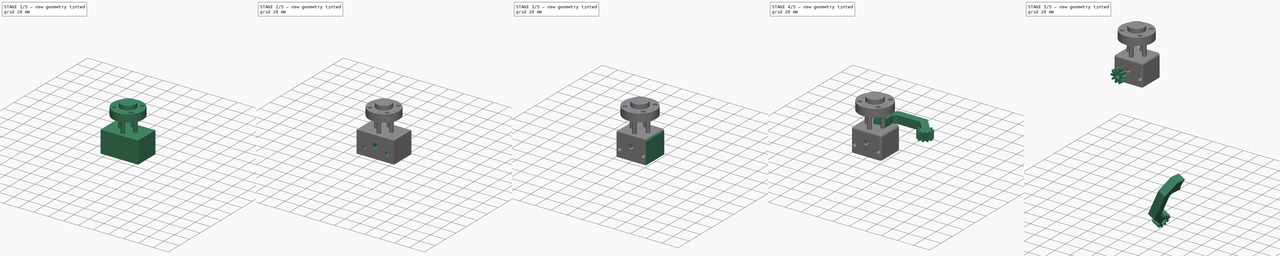
[diagram: build sequence overview — one tinted view per stage of 5, left to right]
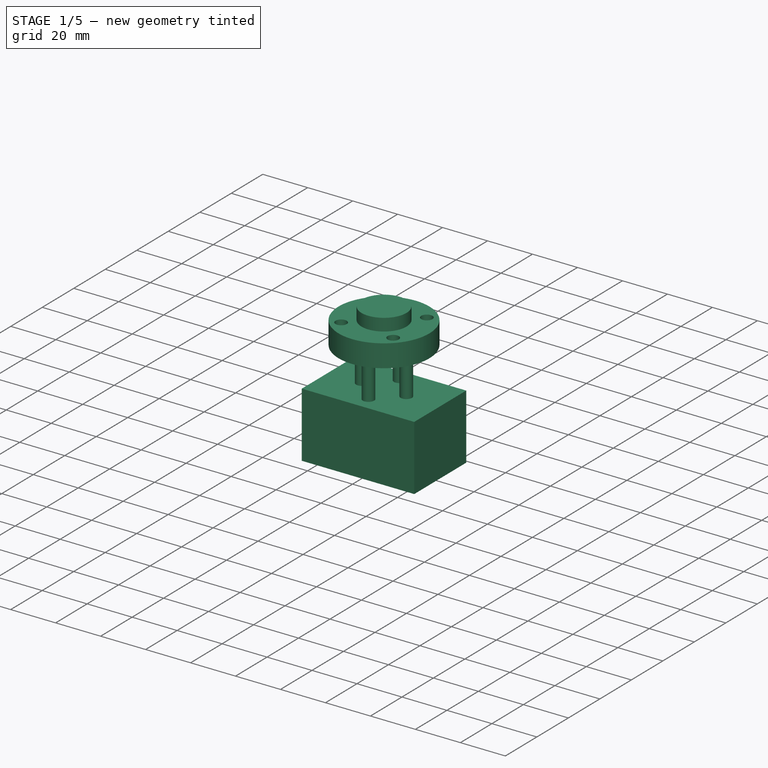
[diagram: stage 1 of 5 — iso view after this stage's code; geometry added in this stage tinted green]
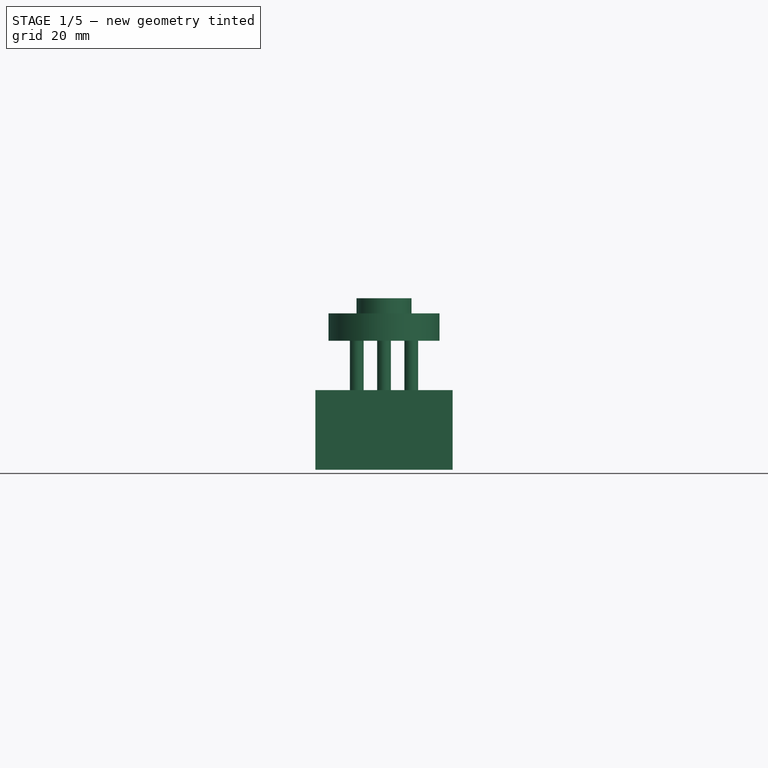
[diagram: stage 1 of 5 — front view after this stage's code; geometry added in this stage tinted green]
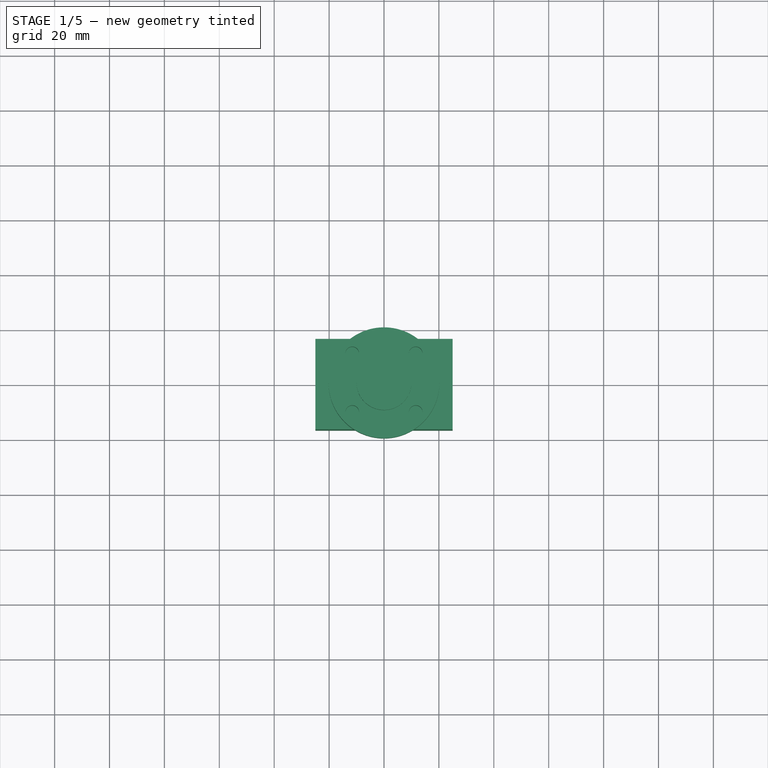
[diagram: stage 1 of 5 — top view after this stage's code; geometry added in this stage tinted green]
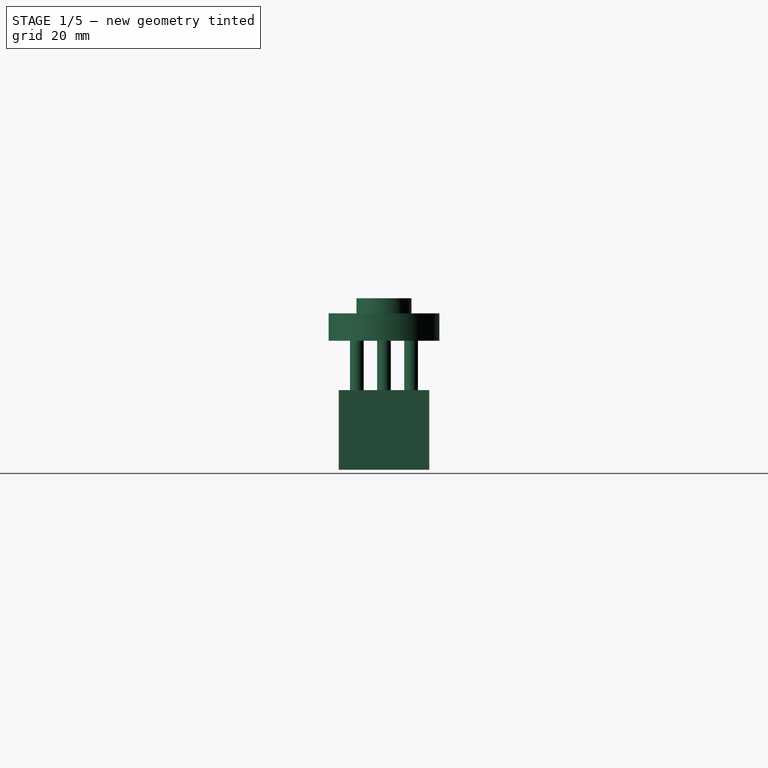
[diagram: stage 1 of 5 — right view after this stage's code; geometry added in this stage tinted green]
FCSTD DOCUMENT  (FreeCAD 0.16R6712 (Git))
Label: pinza basica
License: All rights reserved
LicenseURL: http://en.wikipedia.org/wiki/All_rights_reserved
objects: Sketcher::SketchObject×10, PartDesign::Pocket×6, PartDesign::Pad×5, App::DocumentObjectGroup×4, Part::Box×3, PartDesign::Fillet×3, Part::Part2DObjectPython×2, Part::Cut×2, Part::MultiFuse×1, Part::Cylinder×1, Part::Mirroring×1, Part::Fuse×1
note: 46 computed .brp shape members not serialized (recipe doc carries the construction recipe); baked Part::Feature solids carry a one-line shape summary decoded from their .brp

FEATURE [Part::Cylinder] Cylinder  label="Cilindro"
  Angle = 360
  Height = 10
  Placement = pos=(0,0,14) rot=(0,0,1;0rad)
  Radius = 20.2
FEATURE [Part::Box] Box  label="Cubo"
  Height = 29
  Length = 50
  Placement = pos=(-25,-16.5,-33) rot=(0,0,1;0rad)
  Width = 33
FEATURE [App::DocumentObjectGroup] Grupo  label="Agarre"
  Group = -> [Fusion,Pocket,mirror]
FEATURE [Sketcher::SketchObject] Sketch012
  Placement = pos=(0,0,24) rot=(0,0,1;0rad)
  Support = -> Cylinder [Face2]
  sketch-geometry (5):
    g0: Circle [constr] CenterX=0 CenterY=0 CenterZ=0 NormalX=0 NormalY=0 NormalZ=1 Radius=15.75
    g1: Circle CenterX=-11.5693 CenterY=10.687 CenterZ=0 NormalX=0 NormalY=0 NormalZ=1 Radius=2.5
    g2: Circle CenterX=11.5693 CenterY=10.687 CenterZ=0 NormalX=0 NormalY=0 NormalZ=1 Radius=2.5
    g3: Circle CenterX=11.5693 CenterY=-10.687 CenterZ=0 NormalX=0 NormalY=0 NormalZ=1 Radius=2.5
    g4: Circle CenterX=-11.5693 CenterY=-10.687 CenterZ=0 NormalX=0 NormalY=0 NormalZ=1 Radius=2.5
  constraints (11):
    c: Coincident(g0,g-1)
    c: Radius(g0) = 15.75
    c: PointOnObject(g1,g0)
    c: PointOnObject(g3,g0)
    c: Symmetric(g1,g4,g-1)
    c: Symmetric(g1,g2,g-2)
    c: Symmetric(g2,g3,g-1)
    c: Radius(g1) = 2.5
    c: Equal(g1,g4)
    c: Equal(g4,g3)
    c: Equal(g3,g2)
FEATURE [PartDesign::Pocket] Pocket004  label="taladros cil"
  Length = 18
  Placement = pos=(0,0,14) rot=(0,0,1;0rad)
  Sketch = -> Sketch012
  Type = 0
FEATURE [Sketcher::SketchObject] Sketch013
  Placement = pos=(0,0,24) rot=(0,0,1;0rad)
  Support = -> Pocket004 [Face2]
  sketch-geometry (1):
    g0: Circle CenterX=0 CenterY=0 CenterZ=0 NormalX=0 NormalY=0 NormalZ=1 Radius=10
  constraints (2):
    c: Coincident(g0,g-1)
    c: Radius(g0) = 10
FEATURE [PartDesign::Pad] Pad003  label="est cilin"
  Length = 5.5
  Length2 = 100
  Placement = pos=(0,0,14) rot=(0,0,1;0rad)
  Sketch = -> Sketch013
  Type = 0
FEATURE [Sketcher::SketchObject] Sketch014
  Placement = pos=(0,0,14) rot=(1,0,0;3.14159rad)
  Support = -> Pad003 [Face3]
  sketch-geometry (4):
    g0: Circle CenterX=-9.91664 CenterY=0 CenterZ=0 NormalX=0 NormalY=0 NormalZ=1 Radius=2.5
    g1: Circle CenterX=9.91664 CenterY=0 CenterZ=0 NormalX=0 NormalY=0 NormalZ=1 Radius=2.5
    g2: Circle CenterX=0 CenterY=9.87696 CenterZ=0 NormalX=0 NormalY=0 NormalZ=1 Radius=2.5
    g3: Circle CenterX=0 CenterY=-9.87696 CenterZ=0 NormalX=0 NormalY=0 NormalZ=1 Radius=2.5
  constraints (10):
    c: PointOnObject(g0,g-1)
    c: PointOnObject(g1,g-1)
    c: PointOnObject(g2,g-2)
    c: PointOnObject(g3,g-2)
    c: Radius(g0) = 2.5
    c: Equal(g0,g2)
    c: Equal(g2,g1)
    c: Equal(g1,g3)
    c: Symmetric(g2,g3,g-1)
    c: Symmetric(g1,g0,g-2)
FEATURE [PartDesign::Pad] Pad004
  Length = 20
  Length2 = 100
  Placement = pos=(0,0,14) rot=(0,0,1;0rad)
  Sketch = -> Sketch014
  Type = 0
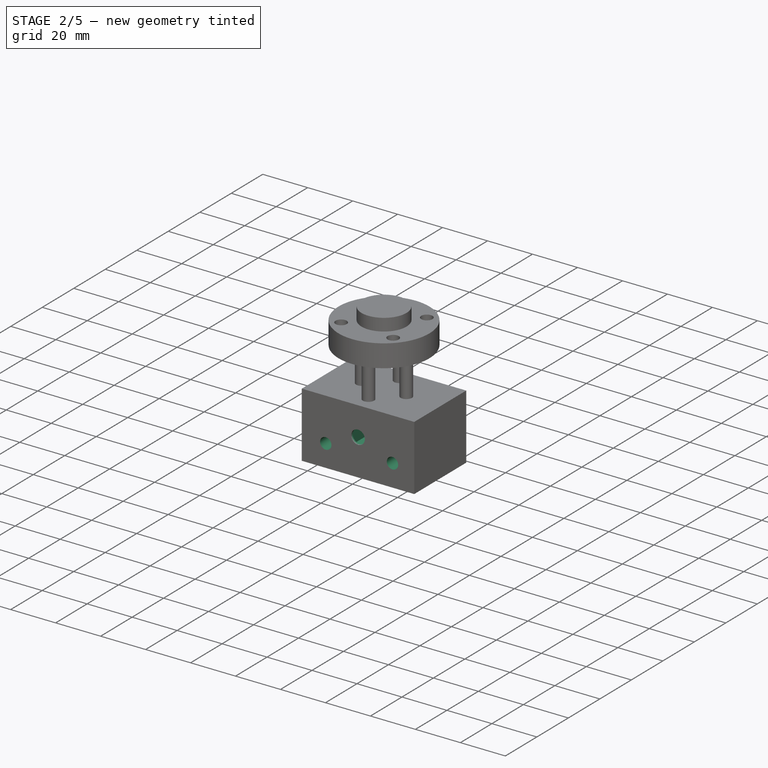
[diagram: stage 2 of 5 — iso view after this stage's code; geometry added in this stage tinted green]
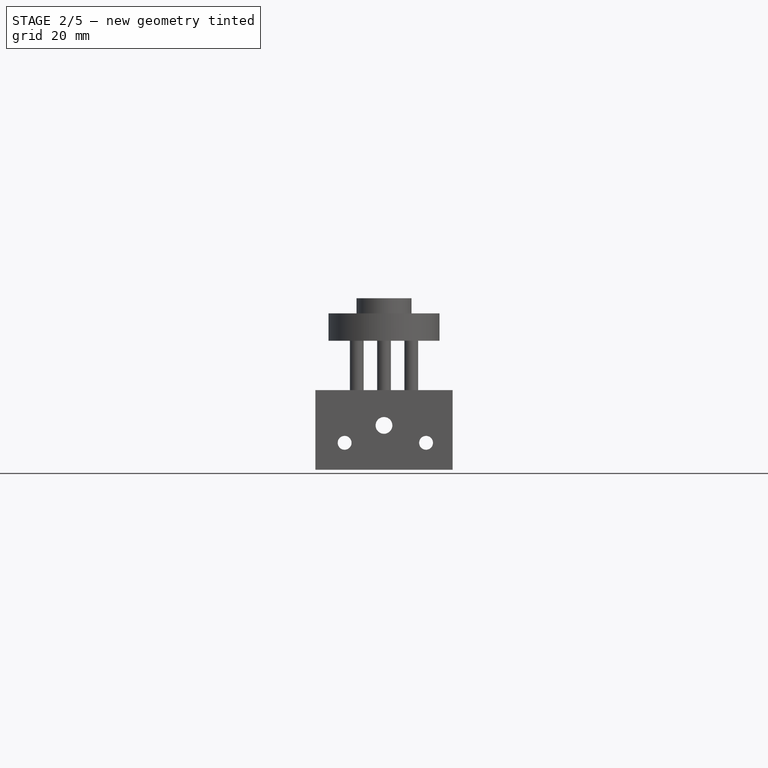
[diagram: stage 2 of 5 — front view after this stage's code; geometry added in this stage tinted green]
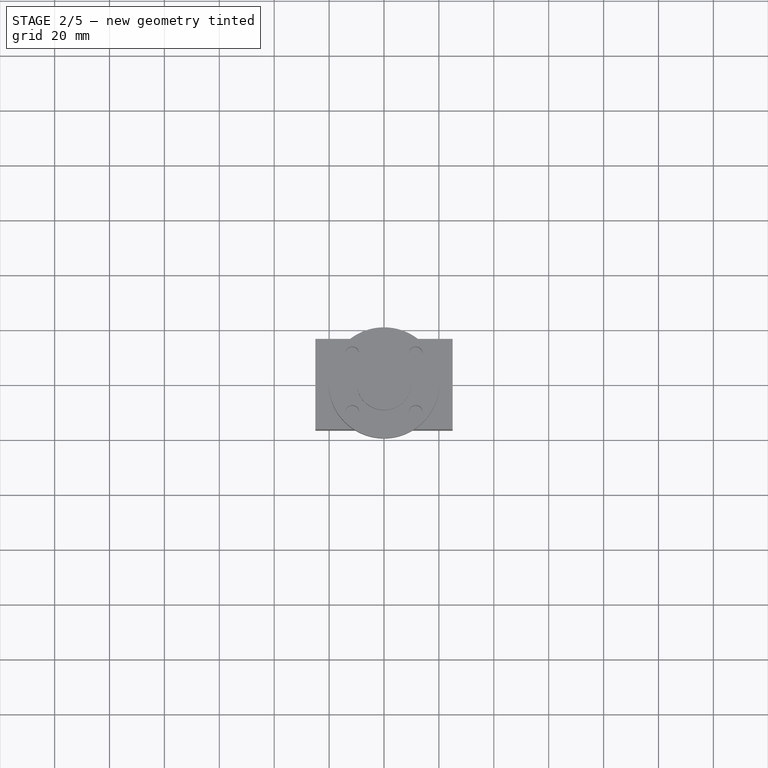
[diagram: stage 2 of 5 — top view after this stage's code; geometry added in this stage tinted green]
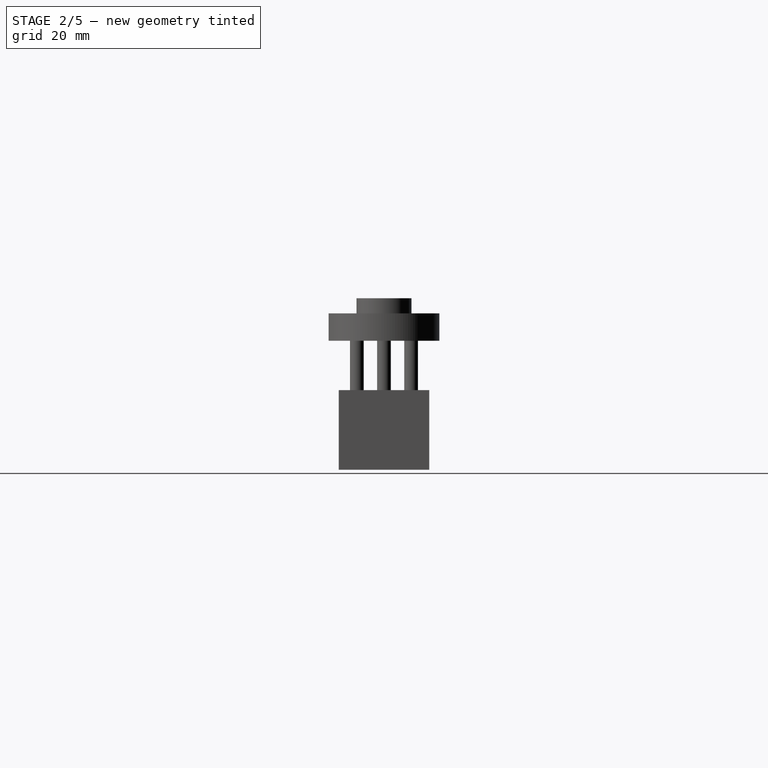
[diagram: stage 2 of 5 — right view after this stage's code; geometry added in this stage tinted green]
FEATURE [Sketcher::SketchObject] Sketch015
  Placement = pos=(0,0,14) rot=(1,0,0;3.14159rad)
  Support = -> Pad003 [Face3]
  sketch-geometry (5):
    g0: Circle [constr] CenterX=0 CenterY=0 CenterZ=0 NormalX=0 NormalY=0 NormalZ=1 Radius=15.75
    g1: Circle CenterX=-15.7486 CenterY=-0.211937 CenterZ=0 NormalX=0 NormalY=0 NormalZ=1 Radius=2.73822
    g2: Circle CenterX=-0.054706 CenterY=-15.7499 CenterZ=0 NormalX=0 NormalY=0 NormalZ=1 Radius=2.69912
    g3: Circle CenterX=0.0437532 CenterY=15.7499 CenterZ=0 NormalX=0 NormalY=0 NormalZ=1 Radius=2.75406
    g4: Circle CenterX=15.718 CenterY=1.00422 CenterZ=0 NormalX=0 NormalY=0 NormalZ=1 Radius=3.16538
  constraints (6):
    c: Coincident(g0,g-1)
    c: Radius(g0) = 15.75
    c: PointOnObject(g1,g0)
    c: PointOnObject(g2,g0)
    c: PointOnObject(g3,g0)
    c: PointOnObject(g4,g0)
FEATURE [Sketcher::SketchObject] Sketch016
  Placement = pos=(-25,16.5,-33) rot=(0,0.707107,0.707107;3.14159rad)
  Support = -> Box [Face4]
  sketch-geometry (4):
    g0: LineSegment StartX=-35.1769 StartY=26.7382 StartZ=0 EndX=-14.7627 EndY=26.7382 EndZ=0
    g1: LineSegment StartX=-14.7627 StartY=26.7382 StartZ=0 EndX=-14.7627 EndY=6.32665 EndZ=0
    g2: LineSegment StartX=-14.7627 StartY=6.32665 StartZ=0 EndX=-35.1769 EndY=6.32665 EndZ=0
    g3: LineSegment StartX=-35.1769 StartY=6.32665 StartZ=0 EndX=-35.1769 EndY=26.7382 EndZ=0
  constraints (8):
    c: Coincident(g0,g1)
    c: Coincident(g1,g2)
    c: Coincident(g2,g3)
    c: Coincident(g3,g0)
    c: Horizontal(g0)
    c: Horizontal(g2)
    c: Vertical(g1)
    c: Vertical(g3)
FEATURE [PartDesign::Pocket] Pocket005
  Length = 32
  Placement = pos=(-25,-16.5,-33) rot=(0,0,1;0rad)
  Sketch = -> Sketch016
  Type = 0
FEATURE [Sketcher::SketchObject] Sketch017
  Placement = pos=(-25,-15.5,-33) rot=(0,0.707107,0.707107;3.14159rad)
  Support = -> Pocket005 [Face11]
  sketch-geometry (1):
    g0: Circle CenterX=-24.9914 CenterY=16.1661 CenterZ=0 NormalX=0 NormalY=0 NormalZ=1 Radius=3.04752
FEATURE [PartDesign::Pocket] Pocket006
  Length = 5
  Placement = pos=(-25,-16.5,-33) rot=(0,0,1;0rad)
  Sketch = -> Sketch017
  Type = 0
FEATURE [Sketcher::SketchObject] Sketch018
  Placement = pos=(-25,-16.5,-33) rot=(1,0,0;1.5708rad)
  Support = -> Pocket006 [Face2]
  sketch-geometry (4):
    g0: Circle CenterX=10.6549 CenterY=9.82566 CenterZ=0 NormalX=0 NormalY=0 NormalZ=1 Radius=2.52
    g1: Circle CenterX=40.3221 CenterY=9.82566 CenterZ=0 NormalX=0 NormalY=0 NormalZ=1 Radius=2.52
    g2: LineSegment [constr] StartX=0 StartY=0 StartZ=0 EndX=50 EndY=0 EndZ=0
    g3: LineSegment [constr] StartX=25.4885 StartY=0.00469248 StartZ=0 EndX=25.4885 EndY=13.9111 EndZ=0
  constraints (7):
    c: Radius(g0) = 2.52
    c: Equal(g0,g1)
    c: Coincident(g2,g-1)
    c: Horizontal(g2)
    c: DistanceX(g2,g2) = 50
    c: Vertical(g3)
    c: Symmetric(g0,g1,g3)
FEATURE [PartDesign::Pocket] Pocket007
  Length = 38
  Placement = pos=(-25,-16.5,-33) rot=(0,0,1;0rad)
  Sketch = -> Sketch018
  Type = 0
FEATURE [Part::Fuse] Fusion001
  Base = -> Pad004
  Tool = -> Pocket007
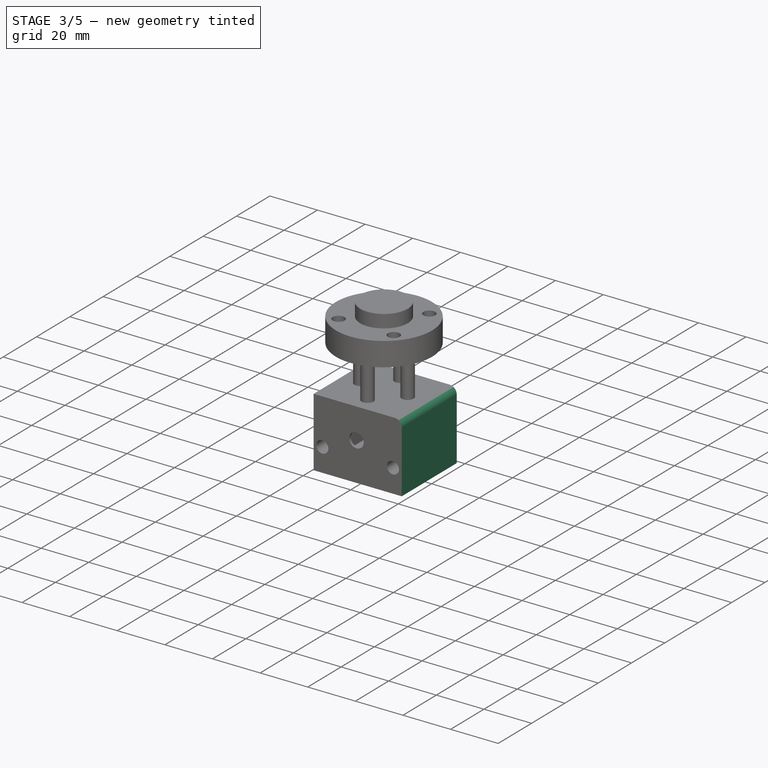
[diagram: stage 3 of 5 — iso view after this stage's code; geometry added in this stage tinted green]
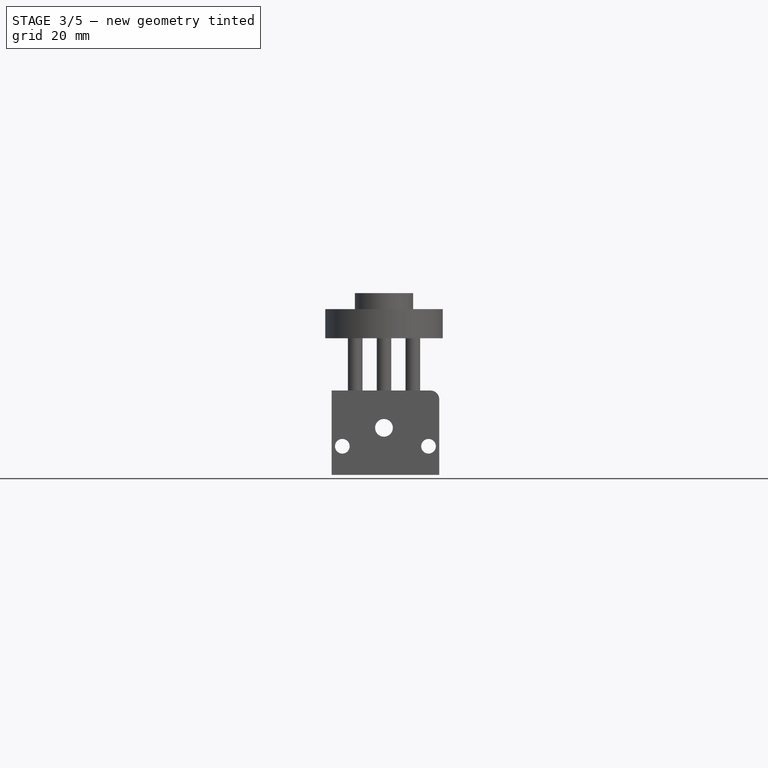
[diagram: stage 3 of 5 — front view after this stage's code; geometry added in this stage tinted green]
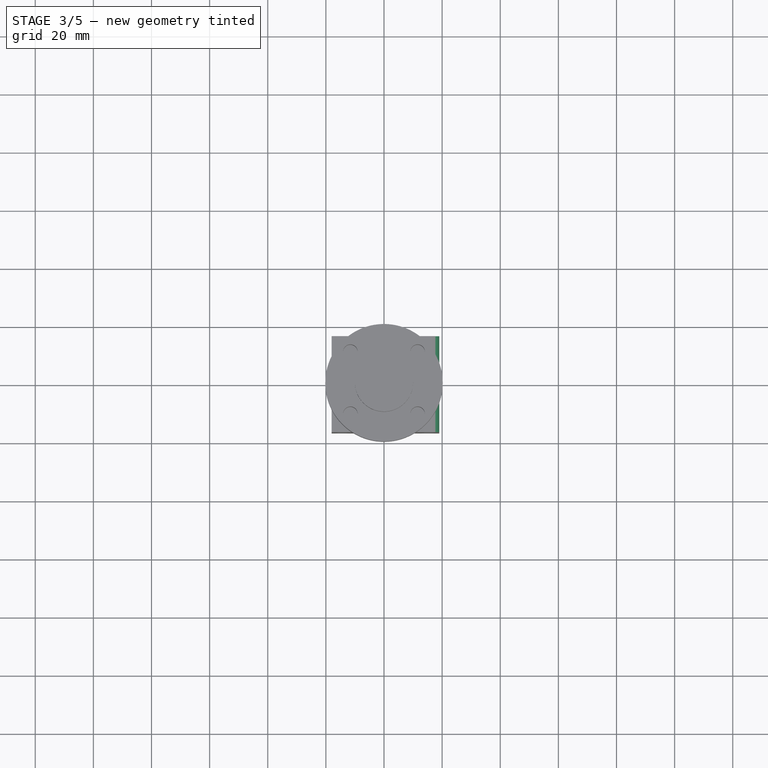
[diagram: stage 3 of 5 — top view after this stage's code; geometry added in this stage tinted green]
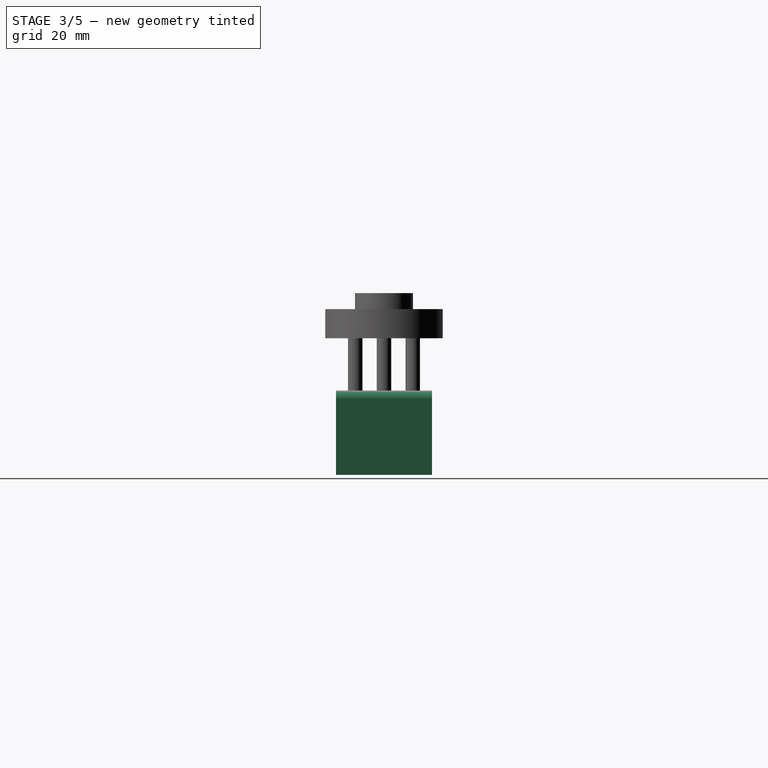
[diagram: stage 3 of 5 — right view after this stage's code; geometry added in this stage tinted green]
FEATURE [Part::Box] Box001  label="Cubo001"
  Height = 31
  Length = 10
  Placement = pos=(19,-22,-35) rot=(0,0,1;0rad)
  Width = 56
FEATURE [Part::Box] Box002  label="Cubo002"
  Height = 31
  Length = 10
  Placement = pos=(-28,-22,-35) rot=(0,0,1;0rad)
  Width = 56
FEATURE [Part::Cut] Cut
  Base = -> Fusion001
  Tool = -> Box001
FEATURE [Part::Cut] Cut001
  Base = -> Cut
  Tool = -> Box002
FEATURE [App::DocumentObjectGroup] Grupo003  label="operaciones intermedias"
  Group = -> [Cylinder,Box,Pocket004,Pad003,Sketch015,Pocket005,Pocket006]
FEATURE [PartDesign::Fillet] Fillet
  Base = -> Cut001 [Edge32]
  Radius = 3
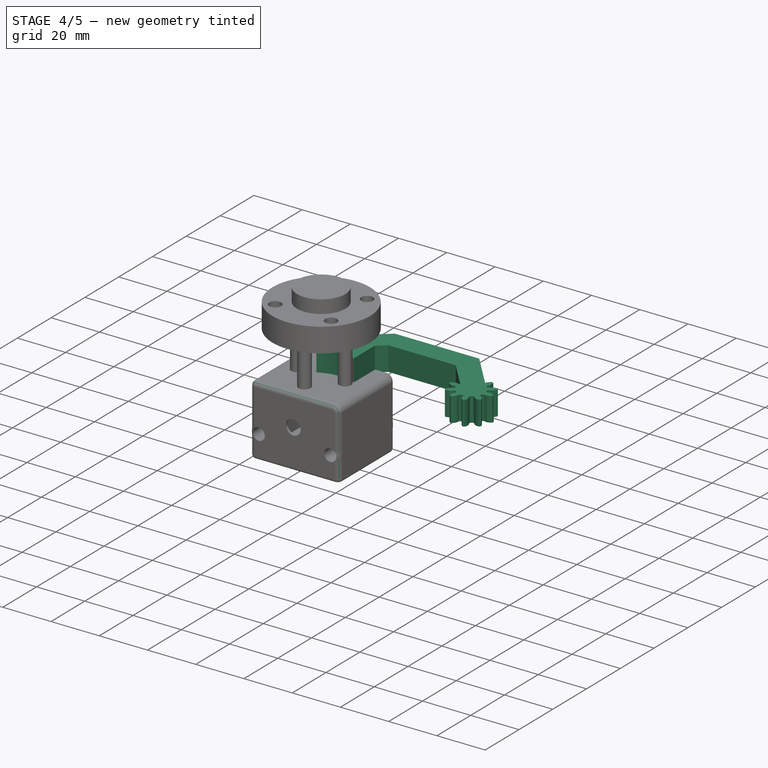
[diagram: stage 4 of 5 — iso view after this stage's code; geometry added in this stage tinted green]
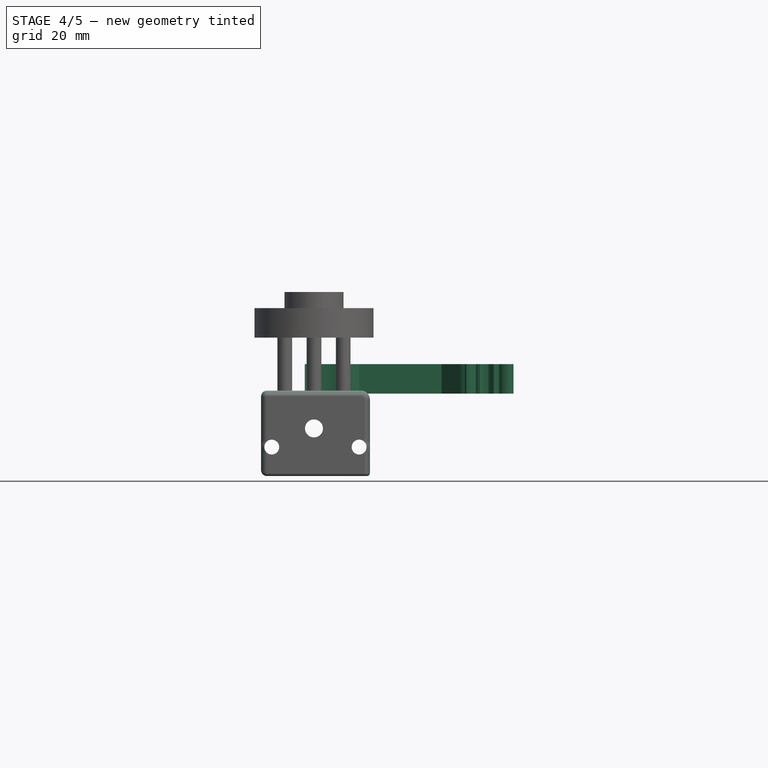
[diagram: stage 4 of 5 — front view after this stage's code; geometry added in this stage tinted green]
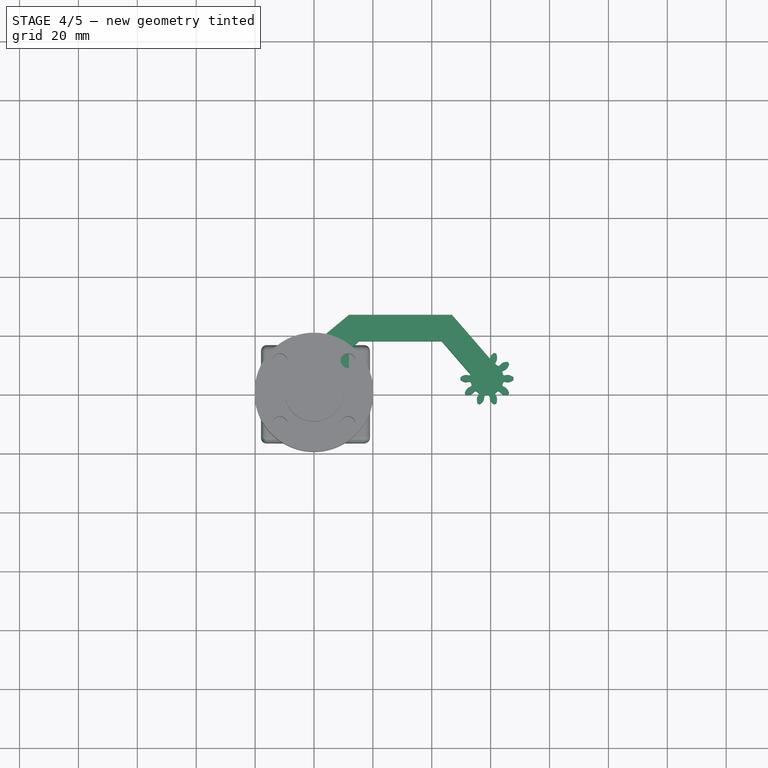
[diagram: stage 4 of 5 — top view after this stage's code; geometry added in this stage tinted green]
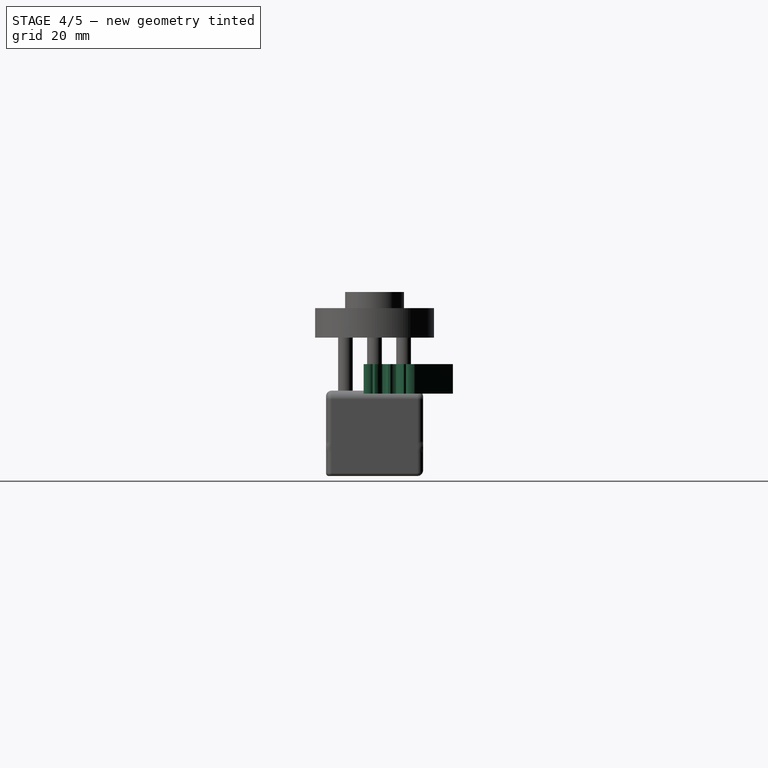
[diagram: stage 4 of 5 — right view after this stage's code; geometry added in this stage tinted green]
FEATURE [Sketcher::SketchObject] Sketch
  sketch-geometry (12):
    g0: LineSegment StartX=-3.13585 StartY=1.62486 StartZ=0 EndX=-3.13585 EndY=14.1249 EndZ=0
    g1: LineSegment StartX=-3.13585 StartY=14.1249 StartZ=0 EndX=11.8642 EndY=26.6249 EndZ=0
    g2: LineSegment StartX=11.8642 StartY=2.28446 StartZ=0 EndX=11.8642 EndY=14.7845 EndZ=0
    g3: LineSegment StartX=11.8642 StartY=14.7845 StartZ=0 EndX=15.3655 EndY=17.7022 EndZ=0
    g4: LineSegment StartX=11.8642 StartY=26.6249 StartZ=0 EndX=46.8642 EndY=26.6249 EndZ=0
    g5: LineSegment StartX=46.8642 StartY=26.6249 StartZ=0 EndX=63.3629 EndY=7.55426 EndZ=0
    g6: LineSegment StartX=57.272 StartY=1.62486 StartZ=0 EndX=43.3629 EndY=17.7022 EndZ=0
    g7: LineSegment StartX=43.3629 StartY=17.7022 StartZ=0 EndX=15.3655 EndY=17.7022 EndZ=0
    g8: LineSegment [constr] StartX=11.8642 StartY=26.6249 StartZ=0 EndX=15.3655 EndY=17.7022 EndZ=0
    g9: LineSegment [constr] StartX=43.3629 StartY=17.7022 StartZ=0 EndX=46.8642 EndY=26.6249 EndZ=0
    g10: ArcOfCircle CenterX=5.02639 CenterY=-13.1052 CenterZ=0 NormalX=0 NormalY=0 NormalZ=1 Radius=16.8403 StartAngle=1.15268 EndAngle=2.0768
    g11: LineSegment StartX=57.272 StartY=1.62486 StartZ=0 EndX=63.3629 EndY=7.55426 EndZ=0
  constraints (29):
    c: Vertical(g0)
    c: Coincident(g0,g1)
    c: DistanceX(g0,g2) = 15
    c: DistanceY(g0,g0) = 12.5
    c: DistanceY(g0,g1) = 12.5
    c: DistanceX(g0,g1) = 15
    c: Vertical(g2)
    c: Equal(g2,g0)
    c: Coincident(g2,g3)
    c: Parallel(g3,g1)
    c: Coincident(g1,g4)
    c: Horizontal(g4)
    c: Coincident(g4,g5)
    c: Coincident(g6,g7)
    c: Horizontal(g7)
    c: Coincident(g7,g3)
    c: DistanceX(g4,g4) = 35
    c: Coincident(g8,g1)
    c: Coincident(g8,g3)
    c: Coincident(g9,g6)
    c: Coincident(g9,g4)
    c: Equal(g9,g8)
    c: DistanceX(g6,g5) = 20
    c: DistanceY(g6,g4) = 25
    c: Parallel(g5,g6)
    c: Coincident(g11,g5)
    c: Coincident(g11,g6)
    c: Coincident(g10,g0)
    c: Coincident(g10,g2)
FEATURE [Part::Part2DObjectPython] InvoluteGear  # Draft 2D object (typed FeaturePython)
  ExternalGear = true
  HighPrecision = true
  Modules = 1.5
  NumberOfTeeth = 10
  Placement = pos=(58.75,5,0) rot=(0,0,1;0rad)
  PressureAngle = 20
FEATURE [PartDesign::Pad] Pad
  Length = 10
  Length2 = 100
  Midplane = true
  Placement = pos=(58.75,5,0) rot=(0,0,1;0rad)
  Sketch = -> InvoluteGear
  Type = 0
FEATURE [PartDesign::Pad] Pad001
  Length = 10
  Length2 = 100
  Midplane = true
  Sketch = -> Sketch
  Type = 0
FEATURE [PartDesign::Fillet] Fillet001  label="Cajamotor"
  Base = -> Fillet [Edge9,Edge12,Edge11,Edge21,Edge22,Edge3,Edge1,Edge4]
  Radius = 1
FEATURE [PartDesign::Fillet] Fillet002  label="Caja motor001"
  Base = -> Fillet001 [Edge41,Edge44]
  Radius = 1
FEATURE [App::DocumentObjectGroup] Grupo002  label="Caja motor"
  Group = -> [Cut001,Grupo003,Fillet,Fillet001,Fillet002]
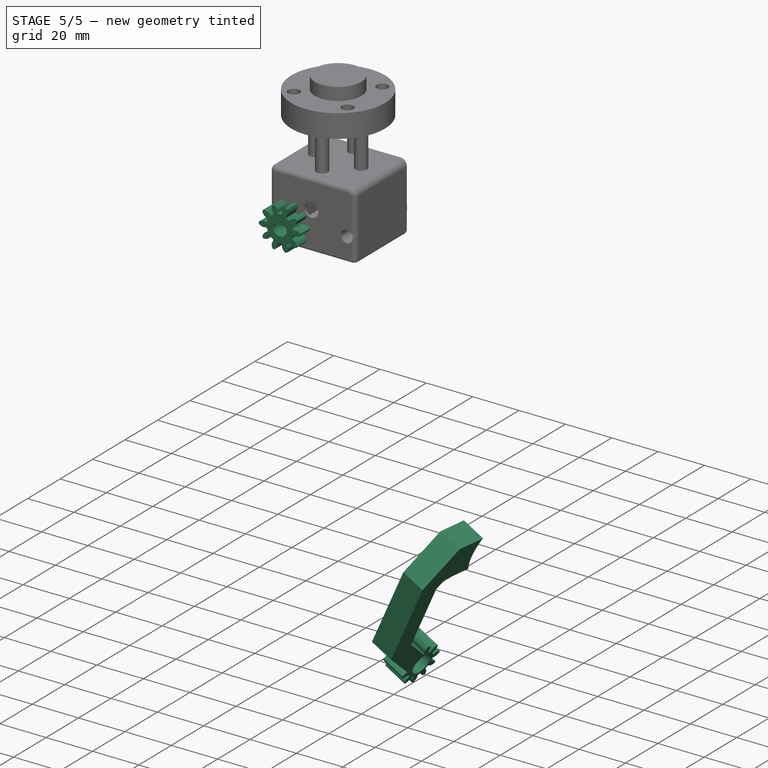
[diagram: stage 5 of 5 — iso view after this stage's code; geometry added in this stage tinted green]
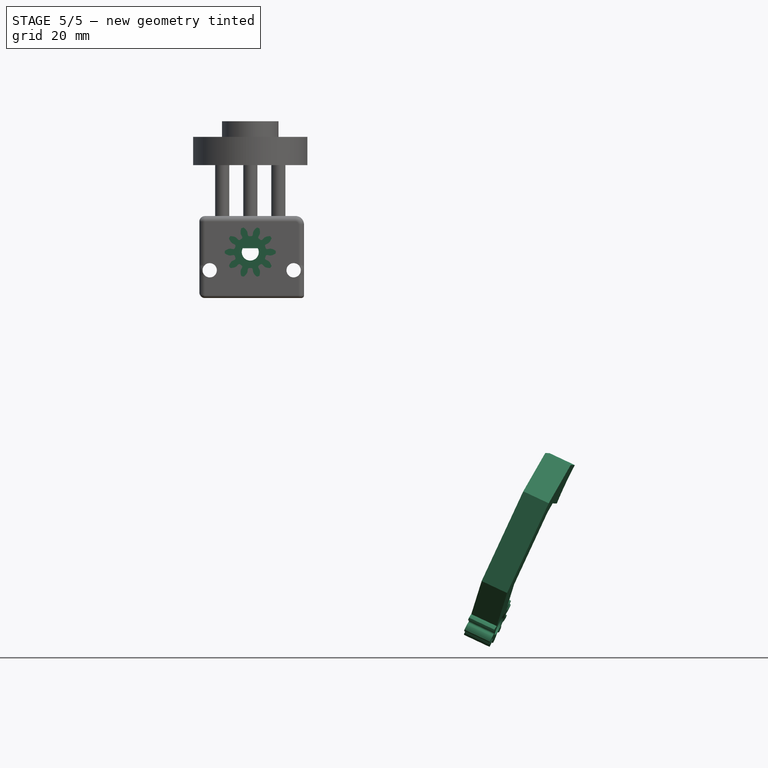
[diagram: stage 5 of 5 — front view after this stage's code; geometry added in this stage tinted green]
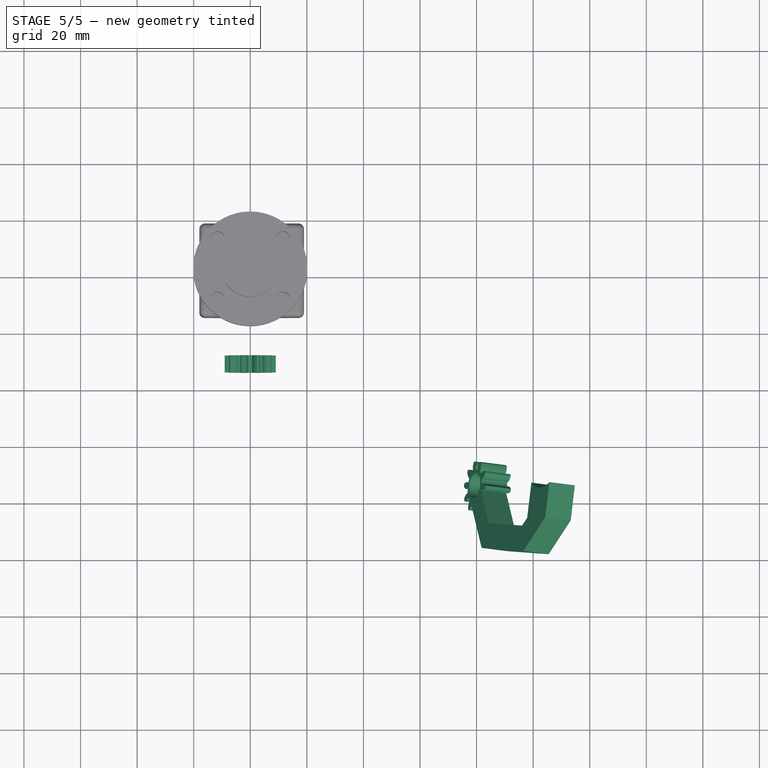
[diagram: stage 5 of 5 — top view after this stage's code; geometry added in this stage tinted green]
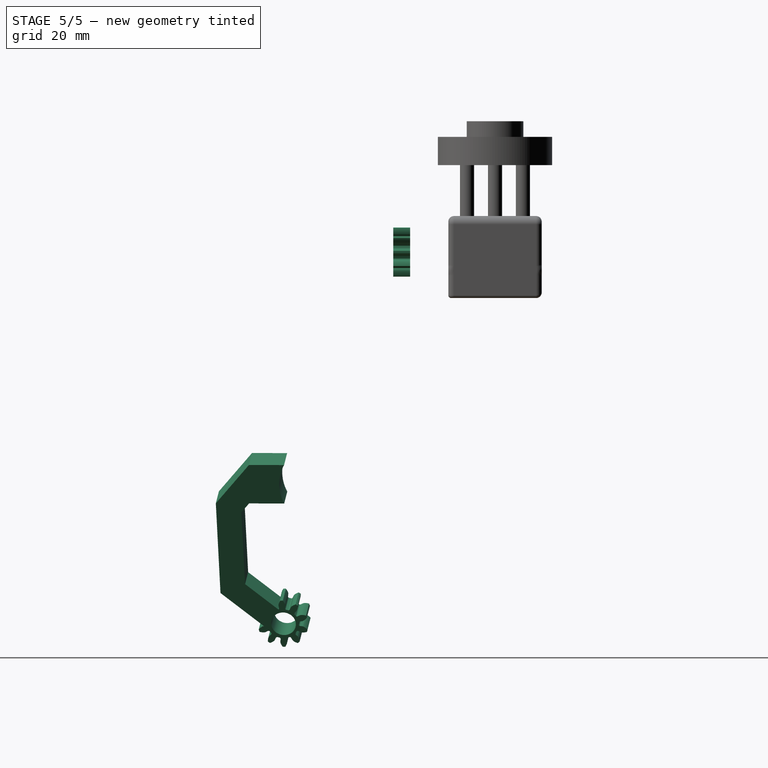
[diagram: stage 5 of 5 — right view after this stage's code; geometry added in this stage tinted green]
FEATURE [Part::MultiFuse] Fusion
  Placement = pos=(0,37,-93) rot=(0,-1,0;1.5708rad)
  Shapes = -> [Pad001,Pad]
FEATURE [Part::Part2DObjectPython] InvoluteGear001  # Draft 2D object (typed FeaturePython)
  ExternalGear = true
  HighPrecision = true
  Modules = 1.5
  NumberOfTeeth = 10
  Placement = pos=(0,-30,-16.75) rot=(1,0,0;1.5708rad)
  PressureAngle = 20
FEATURE [PartDesign::Pad] Pad002
  Length = 6
  Length2 = 100
  Placement = pos=(0,-30,-16.75) rot=(1,0,0;1.5708rad)
  Sketch = -> InvoluteGear001
  Type = 0
FEATURE [Sketcher::SketchObject] Sketch004
  Placement = pos=(0,-30,-16.75) rot=(-1,0,0;1.5708rad)
  Support = -> Pad002 [Face101]
  sketch-geometry (2):
    g0: ArcOfCircle CenterX=0 CenterY=0 CenterZ=0 NormalX=0 NormalY=0 NormalZ=1 Radius=3 StartAngle=5.80925 EndAngle=9.89871
    g1: LineSegment StartX=2.66934 StartY=-1.36917 StartZ=0 EndX=-2.66934 EndY=-1.36917 EndZ=0
  constraints (5):
    c: Coincident(g0,g-1)
    c: Radius(g0) = 3
    c: Horizontal(g1)
    c: Coincident(g0,g1)
    c: Coincident(g0,g1)
FEATURE [PartDesign::Pocket] Pocket003  label="Engranaje001"
  Length = 8
  Placement = pos=(0,-30,-16.75) rot=(1,0,0;1.5708rad)
  Sketch = -> Sketch004
  Type = 0
FEATURE [App::DocumentObjectGroup] Grupo001  label="Engranaje"
  Group = -> [Pocket003,Pad002]
FEATURE [Sketcher::SketchObject] Sketch005
  Placement = pos=(122.164,72.0477,-95.1163) rot=(0,1,0;2.00784rad)
  Support = -> Fusion [Face89]
  sketch-geometry (1):
    g0: Circle CenterX=58.7845 CenterY=4.74688 CenterZ=0 NormalX=0 NormalY=0 NormalZ=1 Radius=4.4
  constraints (1):
    c: Radius(g0) = 4.4
FEATURE [PartDesign::Pocket] Pocket
  Length = 11
  Placement = pos=(117.634,72.0477,-93) rot=(0,1,0;2.00784rad)
  Sketch = -> Sketch005
  Type = 0
FEATURE [Part::Mirroring] mirror  label="Mirror of Pocket"
  Base = (-2633,162,0)
  Normal = (-0.0588732,-0.998264,0.00157171)
  Source = -> Pocket
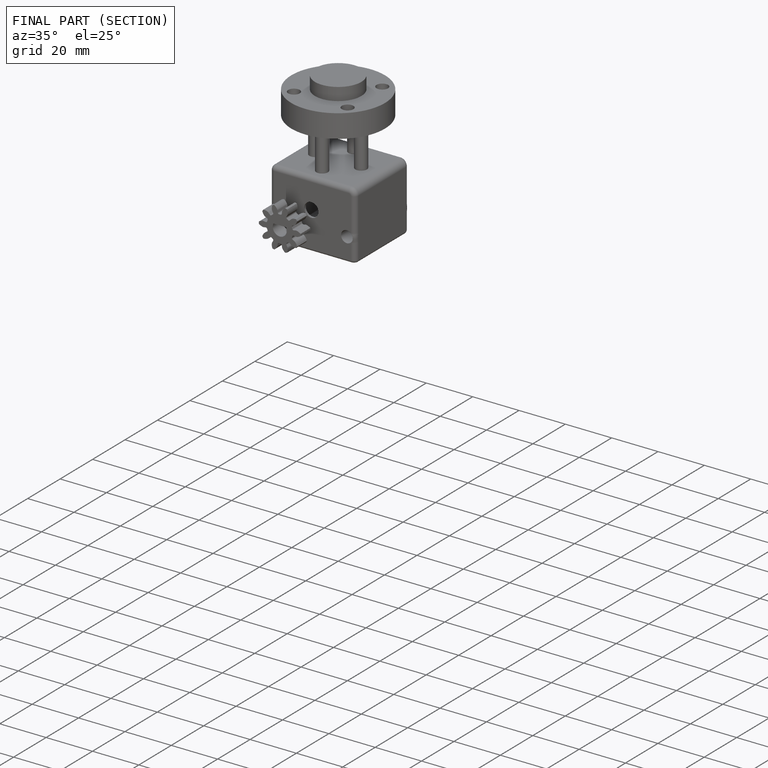
[diagram: finished part — half-section view (interior)]
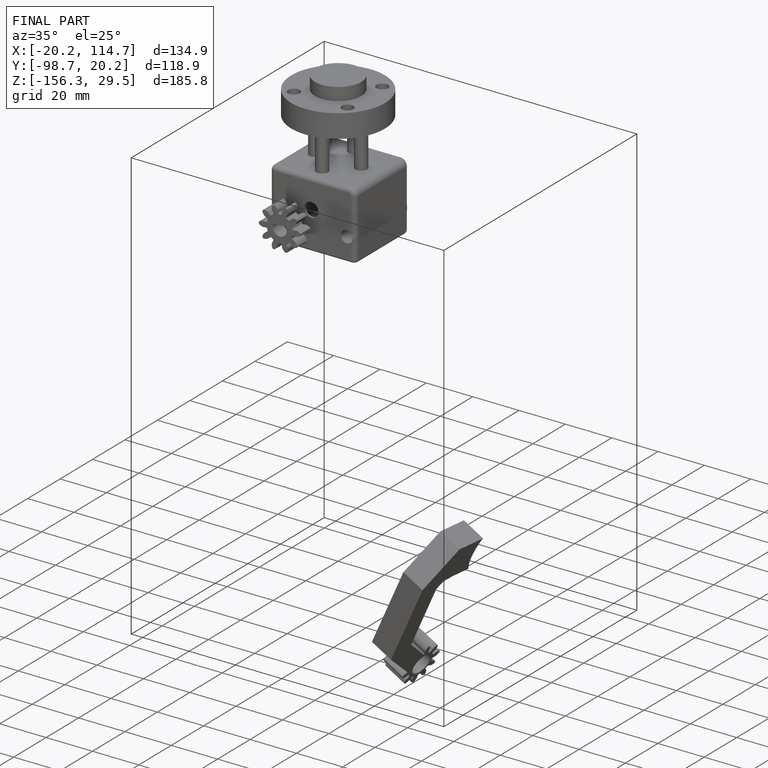
[diagram: finished part — iso view with bounding-box wireframe]
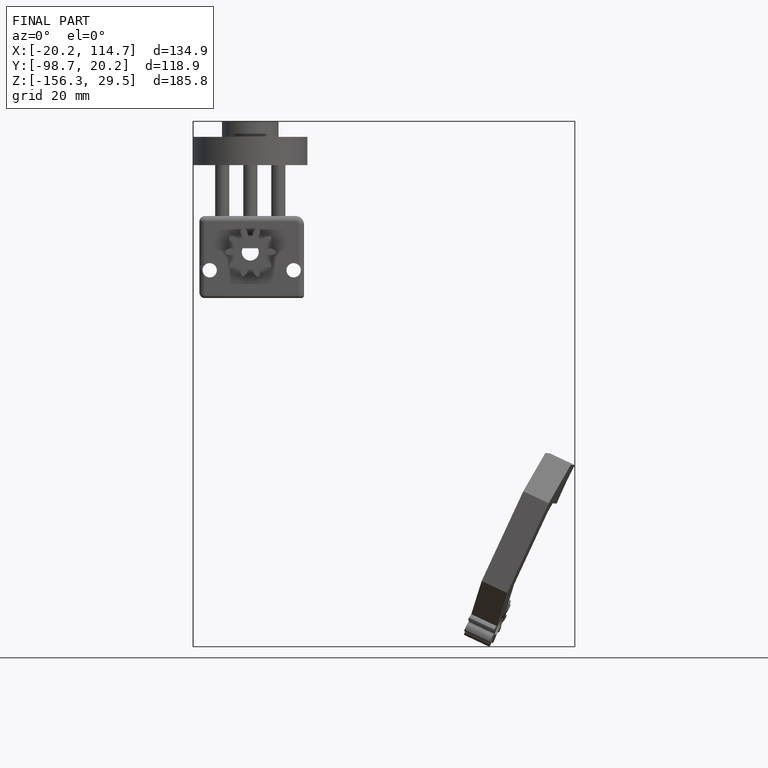
[diagram: finished part — front view with bounding-box wireframe]
